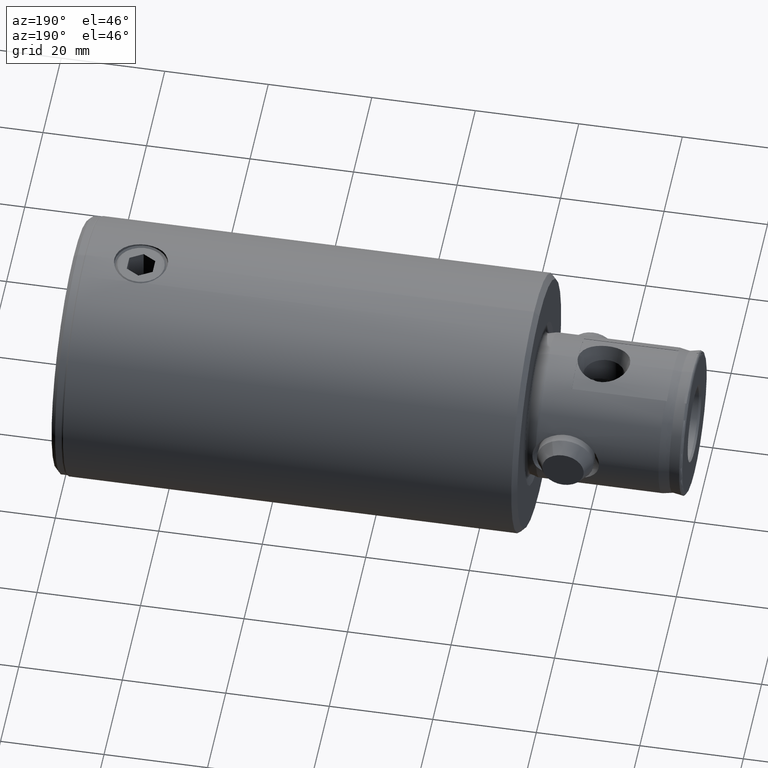
[diagram: clean part render]
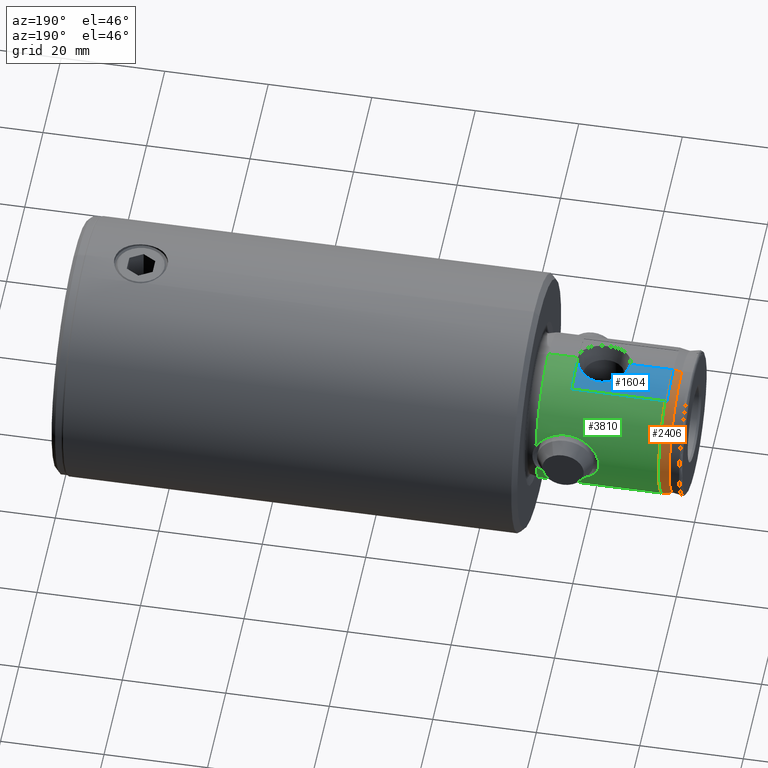
[diagram: same view with three faces highlighted in distinct colors, each labeled with its STEP entity id]
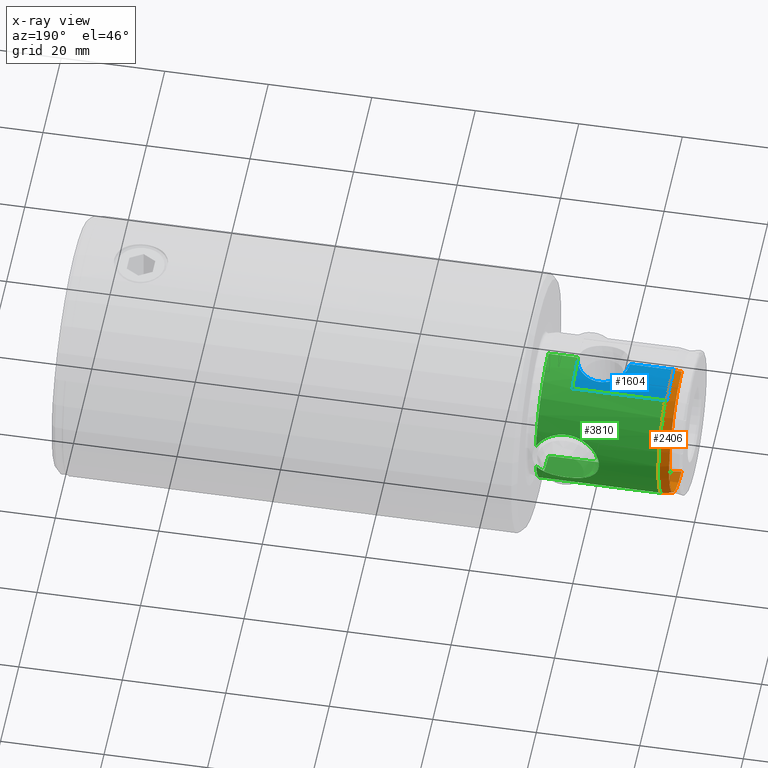
[diagram: x-ray of the same camera — body ghosted, the three highlighted faces saturated]
A machine part, auxiliary view with three faces highlighted in distinct colors.
The next image is the same camera in x-ray (body ghosted, the three faces saturated) — at least one of them is partly hidden behind the body in this view.
Their STEP definitions:

[orange] entity #2406 — the highlighted conical surface has half-angle 10 deg.
#61 = DIRECTION ( 'NONE',  ( 0.0000000000000000000, 0.0000000000000000000, 1.000000000000000000 ) ) ;
#93 = CARTESIAN_POINT ( 'NONE',  ( 12.19529657203608000, 6.750000000000001800, 115.8475680402707700 ) ) ;
#98 = CARTESIAN_POINT ( 'NONE',  ( 13.93000000000000100, 1.700115912069132900E-015, 115.8969897273732400 ) ) ;
#109 = VERTEX_POINT ( 'NONE', #1842 ) ;
#147 = EDGE_CURVE ( 'NONE', #2723, #3440, #887, .T. ) ;
#195 = CONICAL_SURFACE ( 'NONE', #4911, 13.64734603858307500, 0.1745329251994312000 ) ;
#249 = VECTOR ( 'NONE', #3636, 999.9999999999998900 ) ;
#286 = AXIS2_PLACEMENT_3D ( 'NONE', #1549, #3803, #3095 ) ;
#316 = VERTEX_POINT ( 'NONE', #4244 ) ;
#504 = LINE ( 'NONE', #4382, #249 ) ;
#623 = CARTESIAN_POINT ( 'NONE',  ( 13.93000000000000100, 1.700115912069132900E-015, 115.8969897273732400 ) ) ;
#667 = ORIENTED_EDGE ( 'NONE', *, *, #4505, .F. ) ;
#790 = ORIENTED_EDGE ( 'NONE', *, *, #2679, .T. ) ;
#887 = LINE ( 'NONE', #4113, #4332 ) ;
#956 = DIRECTION ( 'NONE',  ( -1.000000000000000000, 0.0000000000000000000, 0.0000000000000000000 ) ) ;
#994 = VERTEX_POINT ( 'NONE', #3510 ) ;
#1061 = ORIENTED_EDGE ( 'NONE', *, *, #2171, .F. ) ;
#1416 = CARTESIAN_POINT ( 'NONE',  ( 13.78296488589999800, 2.045017888756615500, 115.8927994919656800 ) ) ;
#1549 = CARTESIAN_POINT ( 'NONE',  ( 0.0000000000000000000, 0.0000000000000000000, 117.5000000000000000 ) ) ;
#1660 = CARTESIAN_POINT ( 'NONE',  ( 13.64734603858307500, 0.0000000000000000000, 117.5000000000000000 ) ) ;
#1693 = CIRCLE ( 'NONE', #286, 13.64734603858307500 ) ;
#1819 = CARTESIAN_POINT ( 'NONE',  ( 13.56134266502923700, 3.205057411833259100, 115.8864840686328400 ) ) ;
#1842 = CARTESIAN_POINT ( 'NONE',  ( 12.26529657203608000, 6.750000000000001800, 115.4999999999999900 ) ) ;
#1861 = EDGE_CURVE ( 'NONE', #109, #4470, #2106, .T. ) ;
#1985 = CARTESIAN_POINT ( 'NONE',  ( 12.24197818253157700, 6.750000000000001800, 115.6158590063373900 ) ) ;
#2106 = B_SPLINE_CURVE_WITH_KNOTS ( 'NONE', 3,
 ( #4247, #1985, #4635, #93 ),
 .UNSPECIFIED., .F., .F.,
 ( 4, 4 ),
 ( 0.004740533502020404300, 0.005095079999007444200 ),
 .UNSPECIFIED. ) ;
#2171 = EDGE_CURVE ( 'NONE', #2723, #994, #1693, .T. ) ;
#2177 = B_SPLINE_CURVE_WITH_KNOTS ( 'NONE', 3,
 ( #3344, #4042, #2591, #1819, #2222, #2566, #1416, #2894, #4077, #623 ),
 .UNSPECIFIED., .F., .F.,
 ( 4, 2, 2, 2, 4 ),
 ( 2.250691753468842500E-007, 0.003505266093153998300, 0.004381526349148660700, 0.005257786605143323000, 0.007010307117132646800 ),
 .UNSPECIFIED. ) ;
#2222 = CARTESIAN_POINT ( 'NONE',  ( 13.62566706623490200, 2.918193365381274600, 115.8883170326840900 ) ) ;
#2356 = CARTESIAN_POINT ( 'NONE',  ( 0.0000000000000000000, 0.0000000000000000000, 115.4999999999999900 ) ) ;
#2367 = AXIS2_PLACEMENT_3D ( 'NONE', #2356, #61, #2748 ) ;
#2374 = EDGE_CURVE ( 'NONE', #994, #316, #504, .T. ) ;
#2406 = ADVANCED_FACE ( 'NONE', ( #4189 ), #195, .T. ) ;
#2512 = EDGE_LOOP ( 'NONE', ( #1061, #3761, #667, #3270, #790, #3446 ) ) ;
#2566 = CARTESIAN_POINT ( 'NONE',  ( 13.73650709996756300, 2.338270858017040200, 115.8914755685200200 ) ) ;
#2591 = CARTESIAN_POINT ( 'NONE',  ( 13.19615552602072800, 4.624224409879830400, 115.8760782934547000 ) ) ;
#2679 = EDGE_CURVE ( 'NONE', #109, #316, #3260, .T. ) ;
#2723 = VERTEX_POINT ( 'NONE', #1660 ) ;
#2748 = DIRECTION ( 'NONE',  ( 1.000000000000000000, 0.0000000000000000000, 0.0000000000000000000 ) ) ;
#2887 = DIRECTION ( 'NONE',  ( 0.0000000000000000000, 0.0000000000000000000, -1.000000000000000000 ) ) ;
#2894 = CARTESIAN_POINT ( 'NONE',  ( 13.89358345885706400, 1.168449472071400900, 115.8959518747411300 ) ) ;
#3095 = DIRECTION ( 'NONE',  ( 1.000000000000000000, 0.0000000000000000000, 0.0000000000000000000 ) ) ;
#3248 = CARTESIAN_POINT ( 'NONE',  ( 0.0000000000000000000, 0.0000000000000000000, 117.5000000000000000 ) ) ;
#3260 = CIRCLE ( 'NONE', #2367, 14.00000000000000200 ) ;
#3270 = ORIENTED_EDGE ( 'NONE', *, *, #1861, .F. ) ;
#3329 = CARTESIAN_POINT ( 'NONE',  ( 12.19529657203608000, 6.750000000000001800, 115.8475680402707700 ) ) ;
#3344 = CARTESIAN_POINT ( 'NONE',  ( 12.19529657203608000, 6.750000000000001800, 115.8475680402707700 ) ) ;
#3440 = VERTEX_POINT ( 'NONE', #98 ) ;
#3446 = ORIENTED_EDGE ( 'NONE', *, *, #2374, .F. ) ;
#3510 = CARTESIAN_POINT ( 'NONE',  ( -13.64734603858307500, 1.692911691553501200E-015, 117.5000000000000000 ) ) ;
#3636 = DIRECTION ( 'NONE',  ( -0.1736481776669286100, 0.0000000000000000000, -0.9848077530122084600 ) ) ;
#3684 = DIRECTION ( 'NONE',  ( 0.1736481776669286100, 2.126576849575750700E-017, -0.9848077530122084600 ) ) ;
#3761 = ORIENTED_EDGE ( 'NONE', *, *, #147, .T. ) ;
#3803 = DIRECTION ( 'NONE',  ( 0.0000000000000000000, 0.0000000000000000000, 1.000000000000000000 ) ) ;
#4042 = CARTESIAN_POINT ( 'NONE',  ( 12.76666059738928800, 5.711785300511204300, 115.8638411083977100 ) ) ;
#4077 = CARTESIAN_POINT ( 'NONE',  ( 13.93000000000000300, 0.5841741779149363100, 115.8969897273732200 ) ) ;
#4113 = CARTESIAN_POINT ( 'NONE',  ( 13.64734603858307500, 1.671317864300707200E-015, 117.5000000000000000 ) ) ;
#4189 = FACE_OUTER_BOUND ( 'NONE', #2512, .T. ) ;
#4244 = CARTESIAN_POINT ( 'NONE',  ( -14.00000000000000400, 0.0000000000000000000, 115.4999999999999900 ) ) ;
#4247 = CARTESIAN_POINT ( 'NONE',  ( 12.26529657203608000, 6.750000000000001800, 115.4999999999999900 ) ) ;
#4332 = VECTOR ( 'NONE', #3684, 999.9999999999998900 ) ;
#4382 = CARTESIAN_POINT ( 'NONE',  ( -13.64734603858307500, 0.0000000000000000000, 117.5000000000000000 ) ) ;
#4470 = VERTEX_POINT ( 'NONE', #3329 ) ;
#4505 = EDGE_CURVE ( 'NONE', #4470, #3440, #2177, .T. ) ;
#4635 = CARTESIAN_POINT ( 'NONE',  ( 12.21864492891368100, 6.750000000000001800, 115.7317150629940400 ) ) ;
#4911 = AXIS2_PLACEMENT_3D ( 'NONE', #3248, #2887, #956 ) ;

[blue] entity #1604 — the highlighted cylindrical surface (partial cylindrical patch) has radius 14 mm, axis along (-1, 0, 0).
#98 = CARTESIAN_POINT ( 'NONE',  ( 13.93000000000000100, 1.700115912069132900E-015, 115.8969897273732400 ) ) ;
#121 = CARTESIAN_POINT ( 'NONE',  ( 13.92243661871349400, 0.4601276684635998100, 97.50000000000000000 ) ) ;
#221 = CARTESIAN_POINT ( 'NONE',  ( 13.62970044885653700, 2.895681691042795200, 106.5174813728388700 ) ) ;
#251 = VERTEX_POINT ( 'NONE', #2665 ) ;
#264 = EDGE_CURVE ( 'NONE', #1724, #3440, #4089, .T. ) ;
#273 = CARTESIAN_POINT ( 'NONE',  ( 13.08968071146244200, 4.777344164573419100, 103.0436828965610800 ) ) ;
#291 = CARTESIAN_POINT ( 'NONE',  ( 13.24734774208118700, 4.321187803944996900, 100.2969962559374300 ) ) ;
#364 = CIRCLE ( 'NONE', #1035, 14.00000000000000200 ) ;
#514 = CYLINDRICAL_SURFACE ( 'NONE', #878, 14.00000000000000200 ) ;
#623 = CARTESIAN_POINT ( 'NONE',  ( 13.93000000000000100, 1.700115912069132900E-015, 115.8969897273732400 ) ) ;
#643 = CARTESIAN_POINT ( 'NONE',  ( 13.79374192717304100, 1.967940313107625400, 97.90755511833715700 ) ) ;
#673 = CARTESIAN_POINT ( 'NONE',  ( 13.31575603049278400, 4.105288464221573900, 105.1167967268634600 ) ) ;
#699 = DIRECTION ( 'NONE',  ( 0.0000000000000000000, 0.0000000000000000000, -1.000000000000000000 ) ) ;
#708 = CARTESIAN_POINT ( 'NONE',  ( 13.93000000000000300, 0.1575804184599038400, 107.5231537135516900 ) ) ;
#728 = CARTESIAN_POINT ( 'NONE',  ( 13.84813734575962000, 1.539623908669120100, 107.2687263402663700 ) ) ;
#734 = DIRECTION ( 'NONE',  ( 0.0000000000000000000, 0.0000000000000000000, 1.000000000000000000 ) ) ;
#878 = AXIS2_PLACEMENT_3D ( 'NONE', #3857, #1954, #3133 ) ;
#925 = LINE ( 'NONE', #4500, #4839 ) ;
#947 = VECTOR ( 'NONE', #1602, 1000.000000000000000 ) ;
#1000 = CARTESIAN_POINT ( 'NONE',  ( 13.72722142701267800, 2.388188798697188800, 106.8681434979219600 ) ) ;
#1035 = AXIS2_PLACEMENT_3D ( 'NONE', #4482, #699, #4875 ) ;
#1063 = CARTESIAN_POINT ( 'NONE',  ( 13.26826299753350800, 4.255272801819428400, 104.8391815396107600 ) ) ;
#1075 = CARTESIAN_POINT ( 'NONE',  ( 13.90885123101486400, 0.7842719432332087000, 107.4582613081225600 ) ) ;
#1283 = ORIENTED_EDGE ( 'NONE', *, *, #4505, .T. ) ;
#1338 = ORIENTED_EDGE ( 'NONE', *, *, #264, .F. ) ;
#1416 = CARTESIAN_POINT ( 'NONE',  ( 13.78296488589999800, 2.045017888756615500, 115.8927994919656800 ) ) ;
#1565 = B_SPLINE_CURVE_WITH_KNOTS ( 'NONE', 3,
 ( #3710, #1777, #4813, #2576, #643, #3340, #4088, #3323, #3354, #1791, #4441, #291, #1812, #2218, #2202, #4829, #2585, #273, #2952, #4850, #2969, #1063, #673, #2152, #4786, #2545, #221, #1000, #3372, #728, #4476, #1075, #2651, #4494, #708, #2254 ),
 .UNSPECIFIED., .F., .F.,
 ( 4, 2, 2, 2, 2, 2, 2, 2, 2, 2, 2, 2, 2, 2, 2, 2, 2, 4 ),
 ( 1.968493120820871400E-006, 0.0009402772857621217500, 0.001878586078403422700, 0.002816894871044723700, 0.003755203663686024500, 0.004693512456327325300, 0.005631821248968626500, 0.006570130041609927700, 0.007508438834251228100, 0.008446747626892530200, 0.009385056419533830500, 0.01032336521217513300, 0.01126167400481643300, 0.01219998279745773300, 0.01313829159009903500, 0.01407660038274033600, 0.01454575477906099000, 0.01501490917538164700 ),
 .UNSPECIFIED. ) ;
#1602 = DIRECTION ( 'NONE',  ( 0.0000000000000000000, 0.0000000000000000000, 1.000000000000000000 ) ) ;
#1604 = ADVANCED_FACE ( 'NONE', ( #3848 ), #514, .T. ) ;
#1724 = VERTEX_POINT ( 'NONE', #2583 ) ;
#1777 = CARTESIAN_POINT ( 'NONE',  ( 13.91205545619020100, 0.7758177879488895600, 97.53184492937842300 ) ) ;
#1791 = CARTESIAN_POINT ( 'NONE',  ( 13.39157054133116100, 3.850540727424545100, 99.48804266128078700 ) ) ;
#1812 = CARTESIAN_POINT ( 'NONE',  ( 13.20658976098553300, 4.443254278193316000, 100.5826254966198000 ) ) ;
#1819 = CARTESIAN_POINT ( 'NONE',  ( 13.56134266502923700, 3.205057411833259100, 115.8864840686328400 ) ) ;
#1954 = DIRECTION ( 'NONE',  ( 0.0000000000000000000, 0.0000000000000000000, 1.000000000000000000 ) ) ;
#2136 = EDGE_CURVE ( 'NONE', #251, #4470, #925, .T. ) ;
#2152 = CARTESIAN_POINT ( 'NONE',  ( 13.41606595926867000, 3.762696217421689600, 105.6312992343893000 ) ) ;
#2177 = B_SPLINE_CURVE_WITH_KNOTS ( 'NONE', 3,
 ( #3344, #4042, #2591, #1819, #2222, #2566, #1416, #2894, #4077, #623 ),
 .UNSPECIFIED., .F., .F.,
 ( 4, 2, 2, 2, 4 ),
 ( 2.250691753468842500E-007, 0.003505266093153998300, 0.004381526349148660700, 0.005257786605143323000, 0.007010307117132646800 ),
 .UNSPECIFIED. ) ;
#2202 = CARTESIAN_POINT ( 'NONE',  ( 13.11530113195603600, 4.706362817278694900, 101.4822043739909200 ) ) ;
#2218 = CARTESIAN_POINT ( 'NONE',  ( 13.14063342962990100, 4.635677798352042500, 101.1737493629957600 ) ) ;
#2222 = CARTESIAN_POINT ( 'NONE',  ( 13.62566706623490200, 2.918193365381274600, 115.8883170326840900 ) ) ;
#2254 = CARTESIAN_POINT ( 'NONE',  ( 13.93000000000000900, 1.731427006139418400E-015, 107.5231537135516900 ) ) ;
#2483 = EDGE_CURVE ( 'NONE', #3301, #1724, #1565, .T. ) ;
#2545 = CARTESIAN_POINT ( 'NONE',  ( 13.57641583679815200, 3.134549875054074800, 106.3157867162607000 ) ) ;
#2566 = CARTESIAN_POINT ( 'NONE',  ( 13.73650709996756300, 2.338270858017040200, 115.8914755685200200 ) ) ;
#2576 = CARTESIAN_POINT ( 'NONE',  ( 13.83245781770320400, 1.676580246922929200, 97.78233979141205600 ) ) ;
#2583 = CARTESIAN_POINT ( 'NONE',  ( 13.93000000000000900, 1.731427006139418400E-015, 107.5231537135516900 ) ) ;
#2585 = CARTESIAN_POINT ( 'NONE',  ( 13.07967536905463700, 4.804815436923485400, 102.4185256405416900 ) ) ;
#2591 = CARTESIAN_POINT ( 'NONE',  ( 13.19615552602072800, 4.624224409879830400, 115.8760782934547000 ) ) ;
#2651 = CARTESIAN_POINT ( 'NONE',  ( 13.91670197381868400, 0.6298221015118298200, 107.4824045219487200 ) ) ;
#2665 = CARTESIAN_POINT ( 'NONE',  ( 12.19529657203608000, 6.750000000000001800, 97.50000000000000000 ) ) ;
#2879 = ORIENTED_EDGE ( 'NONE', *, *, #4587, .F. ) ;
#2894 = CARTESIAN_POINT ( 'NONE',  ( 13.89358345885706400, 1.168449472071400900, 115.8959518747411300 ) ) ;
#2952 = CARTESIAN_POINT ( 'NONE',  ( 13.10520337713564100, 4.734917589269096900, 103.3597717687372600 ) ) ;
#2969 = CARTESIAN_POINT ( 'NONE',  ( 13.18767256074532100, 4.500080519428094800, 104.2662318425792600 ) ) ;
#3133 = DIRECTION ( 'NONE',  ( 1.000000000000000000, 0.0000000000000000000, 0.0000000000000000000 ) ) ;
#3301 = VERTEX_POINT ( 'NONE', #121 ) ;
#3323 = CARTESIAN_POINT ( 'NONE',  ( 13.55142747085605800, 3.242834235621267600, 98.78466762768695700 ) ) ;
#3329 = CARTESIAN_POINT ( 'NONE',  ( 12.19529657203608000, 6.750000000000001800, 115.8475680402707700 ) ) ;
#3340 = CARTESIAN_POINT ( 'NONE',  ( 13.70543717439264400, 2.512659935918698300, 98.20879280902296700 ) ) ;
#3344 = CARTESIAN_POINT ( 'NONE',  ( 12.19529657203608000, 6.750000000000001800, 115.8475680402707700 ) ) ;
#3354 = CARTESIAN_POINT ( 'NONE',  ( 13.49674220648362200, 3.461798843896911400, 99.00854270068006700 ) ) ;
#3372 = CARTESIAN_POINT ( 'NONE',  ( 13.77197944323566700, 2.117686012754333100, 107.0191703707996900 ) ) ;
#3440 = VERTEX_POINT ( 'NONE', #98 ) ;
#3710 = CARTESIAN_POINT ( 'NONE',  ( 13.92243661871349400, 0.4601276684635998100, 97.50000000000000000 ) ) ;
#3848 = FACE_OUTER_BOUND ( 'NONE', #4025, .T. ) ;
#3857 = CARTESIAN_POINT ( 'NONE',  ( -0.07000000000000000700, 0.0000000000000000000, 97.50000000000000000 ) ) ;
#4025 = EDGE_LOOP ( 'NONE', ( #1338, #4807, #2879, #4078, #1283 ) ) ;
#4042 = CARTESIAN_POINT ( 'NONE',  ( 12.76666059738928800, 5.711785300511204300, 115.8638411083977100 ) ) ;
#4077 = CARTESIAN_POINT ( 'NONE',  ( 13.93000000000000300, 0.5841741779149363100, 115.8969897273732200 ) ) ;
#4078 = ORIENTED_EDGE ( 'NONE', *, *, #2136, .T. ) ;
#4088 = CARTESIAN_POINT ( 'NONE',  ( 13.65593288464937800, 2.767313981031127100, 98.38441217899574600 ) ) ;
#4089 = LINE ( 'NONE', #4228, #947 ) ;
#4228 = CARTESIAN_POINT ( 'NONE',  ( 13.93000000000000100, 0.0000000000000000000, 97.50000000000000000 ) ) ;
#4441 = CARTESIAN_POINT ( 'NONE',  ( 13.34047514595635200, 4.022880967685343200, 99.74600257480189200 ) ) ;
#4470 = VERTEX_POINT ( 'NONE', #3329 ) ;
#4476 = CARTESIAN_POINT ( 'NONE',  ( 13.87816752293798400, 1.241804989204090100, 107.3628910618224500 ) ) ;
#4482 = CARTESIAN_POINT ( 'NONE',  ( -0.07000000000000000700, 0.0000000000000000000, 97.50000000000000000 ) ) ;
#4494 = CARTESIAN_POINT ( 'NONE',  ( 13.92728837994936300, 0.3169006035190821700, 107.5148868466984700 ) ) ;
#4500 = CARTESIAN_POINT ( 'NONE',  ( 12.19529657203608000, 6.750000000000001800, 97.50000000000000000 ) ) ;
#4505 = EDGE_CURVE ( 'NONE', #4470, #3440, #2177, .T. ) ;
#4587 = EDGE_CURVE ( 'NONE', #251, #3301, #364, .T. ) ;
#4786 = CARTESIAN_POINT ( 'NONE',  ( 13.46927356704510700, 3.569053009795567300, 105.8712519311815900 ) ) ;
#4807 = ORIENTED_EDGE ( 'NONE', *, *, #2483, .F. ) ;
#4813 = CARTESIAN_POINT ( 'NONE',  ( 13.89132448406627800, 1.081976593092839100, 97.59546604848522100 ) ) ;
#4829 = CARTESIAN_POINT ( 'NONE',  ( 13.08483540269018500, 4.790858215012586500, 102.1062279089286400 ) ) ;
#4839 = VECTOR ( 'NONE', #734, 1000.000000000000000 ) ;
#4850 = CARTESIAN_POINT ( 'NONE',  ( 13.15430995447273700, 4.595982466686480800, 103.9704232062308500 ) ) ;
#4875 = DIRECTION ( 'NONE',  ( 1.000000000000000000, 0.0000000000000000000, 0.0000000000000000000 ) ) ;

[green] entity #3810 — the highlighted cylindrical surface (partial cylindrical patch) has radius 14 mm, axis along (1, 0, -0).
#61 = DIRECTION ( 'NONE',  ( 0.0000000000000000000, 0.0000000000000000000, 1.000000000000000000 ) ) ;
#109 = VERTEX_POINT ( 'NONE', #1842 ) ;
#116 = CARTESIAN_POINT ( 'NONE',  ( 13.98628557468939500, 0.6195287105819580200, 97.50000000000000000 ) ) ;
#127 = CIRCLE ( 'NONE', #4735, 14.00000000000000000 ) ;
#255 = CARTESIAN_POINT ( 'NONE',  ( 1.695917762201209400, 13.90056626244592100, 103.7354621131498800 ) ) ;
#316 = VERTEX_POINT ( 'NONE', #4244 ) ;
#342 = DIRECTION ( 'NONE',  ( 0.0000000000000000000, 0.0000000000000000000, -1.000000000000000000 ) ) ;
#367 = CARTESIAN_POINT ( 'NONE',  ( -4.784959650984737000, 13.15803071858877300, 101.1754924594164000 ) ) ;
#385 = CARTESIAN_POINT ( 'NONE',  ( -5.529544470009817300, 12.86200036760733500, 95.55000323657294800 ) ) ;
#397 = EDGE_LOOP ( 'NONE', ( #608, #1272, #4187, #2383, #3408, #2848, #996, #4082, #2256, #3008 ) ) ;
#415 = CARTESIAN_POINT ( 'NONE',  ( 12.26529657203607800, 6.750000000000001800, 97.50000000000000000 ) ) ;
#535 = CARTESIAN_POINT ( 'NONE',  ( 3.350307657867889000, 13.59571365889029900, 92.18131306850349900 ) ) ;
#608 = ORIENTED_EDGE ( 'NONE', *, *, #1704, .F. ) ;
#615 = CARTESIAN_POINT ( 'NONE',  ( 2.327663637436867500, 13.80883273357142100, 103.4714641554360000 ) ) ;
#631 = CARTESIAN_POINT ( 'NONE',  ( 5.707787153934146000, 12.78385477015623600, 98.62920639909292200 ) ) ;
#653 = CARTESIAN_POINT ( 'NONE',  ( 5.102777615506080400, 13.03808321615812800, 100.5883371413597200 ) ) ;
#659 = CARTESIAN_POINT ( 'NONE',  ( -0.3482674481706022300, 13.99672645420883700, 104.0014478521524200 ) ) ;
#692 = VECTOR ( 'NONE', #2515, 1000.000000000000000 ) ;
#709 = DIRECTION ( 'NONE',  ( 1.000000000000000000, 0.0000000000000000000, 0.0000000000000000000 ) ) ;
#713 = CARTESIAN_POINT ( 'NONE',  ( -1.366867380146573400, 13.93719423576479100, 103.8374495799833300 ) ) ;
#715 = CARTESIAN_POINT ( 'NONE',  ( -2.786003228854984300, 13.71999220148501100, 91.79524911219959900 ) ) ;
#720 = CYLINDRICAL_SURFACE ( 'NONE', #3905, 14.00000000000000000 ) ;
#756 = CARTESIAN_POINT ( 'NONE',  ( -5.428304949919924700, 12.90547905735602000, 95.21839155667919400 ) ) ;
#771 = CARTESIAN_POINT ( 'NONE',  ( -3.962828783582357700, 13.42985955858207300, 102.2556321204845500 ) ) ;
#786 = CARTESIAN_POINT ( 'NONE',  ( -5.709098745146150100, 12.78326268388171600, 98.62008758027583600 ) ) ;
#828 = EDGE_CURVE ( 'NONE', #3607, #3695, #3155, .T. ) ;
#924 = CARTESIAN_POINT ( 'NONE',  ( 4.513398303489596600, 13.25440434351371300, 93.41236355771370400 ) ) ;
#969 = LINE ( 'NONE', #4105, #4519 ) ;
#996 = ORIENTED_EDGE ( 'NONE', *, *, #1060, .F. ) ;
#1060 = EDGE_CURVE ( 'NONE', #316, #4262, #3669, .T. ) ;
#1106 = CARTESIAN_POINT ( 'NONE',  ( -2.632775246658247200, 13.75329062894703300, 103.3080576556167400 ) ) ;
#1182 = CARTESIAN_POINT ( 'NONE',  ( -5.106925702021530200, 13.03644587788057600, 100.5795376092557100 ) ) ;
#1251 = CARTESIAN_POINT ( 'NONE',  ( 13.99883399844813400, 0.2081859670385358700, 97.46163671662451100 ) ) ;
#1272 = ORIENTED_EDGE ( 'NONE', *, *, #828, .T. ) ;
#1316 = CARTESIAN_POINT ( 'NONE',  ( -5.790990920248874300, 12.74619130042985500, 97.24242749490714700 ) ) ;
#1324 = CARTESIAN_POINT ( 'NONE',  ( 5.707505378783706900, 12.78390275703759800, 96.21833517379765500 ) ) ;
#1366 = CARTESIAN_POINT ( 'NONE',  ( 13.99423090316841100, 0.4149652296097595100, 97.47567767932079600 ) ) ;
#1376 = CARTESIAN_POINT ( 'NONE',  ( 5.474169123394660600, 12.88601298455867700, 99.63842272933806000 ) ) ;
#1410 = B_SPLINE_CURVE_WITH_KNOTS ( 'NONE', 3,
 ( #2628, #3769, #659, #2282, #3011, #713, #2221, #3393, #1106, #1535, #1898, #771, #4540, #3428, #367, #1182, #3047, #1928, #2297, #786, #4600, #4215, #1316, #1949, #2690, #385, #756, #3061, #3855, #3448, #1520, #4177, #2321, #3478, #4225, #2335 ),
 .UNSPECIFIED., .F., .F.,
 ( 4, 2, 2, 2, 2, 2, 2, 2, 2, 2, 2, 2, 2, 2, 2, 2, 2, 4 ),
 ( 0.02368636115555508600, 0.02419977539775300700, 0.02471318963995092600, 0.02574001812434675900, 0.02676684660874259100, 0.02779367509313842100, 0.02882050357753425400, 0.02984733206193008700, 0.03087416054632592000, 0.03190098903072174900, 0.03292781751511758600, 0.03395464599951342200, 0.03498147448390925100, 0.03600830296830508100, 0.03703513145270091700, 0.03806195993709674700, 0.03908878842149258300, 0.04011561690588841300 ),
 .UNSPECIFIED. ) ;
#1423 = CARTESIAN_POINT ( 'NONE',  ( 4.778909524931337100, 13.16024228870026200, 101.1855337526098000 ) ) ;
#1520 = CARTESIAN_POINT ( 'NONE',  ( -4.509274815288497600, 13.25581737577915000, 93.40657036200329300 ) ) ;
#1535 = CARTESIAN_POINT ( 'NONE',  ( -3.201421459528325000, 13.63214617227127200, 102.9341559614110700 ) ) ;
#1544 = CARTESIAN_POINT ( 'NONE',  ( 14.00000000000000000, 1.714505518806294600E-015, 91.79524911219959900 ) ) ;
#1557 = DIRECTION ( 'NONE',  ( 0.0000000000000000000, 0.0000000000000000000, 1.000000000000000000 ) ) ;
#1558 = CIRCLE ( 'NONE', #2866, 14.00000000000000000 ) ;
#1601 = CARTESIAN_POINT ( 'NONE',  ( -14.00000000000000000, 0.0000000000000000000, 91.79524911219959900 ) ) ;
#1605 = DIRECTION ( 'NONE',  ( 0.0000000000000000000, 0.0000000000000000000, -1.000000000000000000 ) ) ;
#1662 = CARTESIAN_POINT ( 'NONE',  ( 0.0000000000000000000, 0.0000000000000000000, 97.50000000000000000 ) ) ;
#1666 = CARTESIAN_POINT ( 'NONE',  ( 3.077177347050608500, 13.66086592637210600, 91.97543838154103900 ) ) ;
#1681 = CARTESIAN_POINT ( 'NONE',  ( 5.038412456858351300, 13.06317113933390100, 94.28091334581283400 ) ) ;
#1704 = EDGE_CURVE ( 'NONE', #3607, #2742, #4279, .T. ) ;
#1749 = CARTESIAN_POINT ( 'NONE',  ( 3.957525237287497600, 13.43140993838210300, 102.2611219523042800 ) ) ;
#1765 = CARTESIAN_POINT ( 'NONE',  ( 2.627444490673952200, 13.75432363467087200, 103.3111572752397200 ) ) ;
#1834 = DIRECTION ( 'NONE',  ( 0.0000000000000000000, 0.0000000000000000000, 1.000000000000000000 ) ) ;
#1842 = CARTESIAN_POINT ( 'NONE',  ( 12.26529657203608000, 6.750000000000001800, 115.4999999999999900 ) ) ;
#1898 = CARTESIAN_POINT ( 'NONE',  ( -3.470696273051712600, 13.56537530300773400, 102.7199302023066000 ) ) ;
#1928 = CARTESIAN_POINT ( 'NONE',  ( -5.478383751243890200, 12.88422296619514500, 99.62505926837545200 ) ) ;
#1949 = CARTESIAN_POINT ( 'NONE',  ( -5.734266548439030900, 12.77181097797065600, 96.55580350548943600 ) ) ;
#1989 = DIRECTION ( 'NONE',  ( -1.000000000000000000, 0.0000000000000000000, 0.0000000000000000000 ) ) ;
#2089 = CARTESIAN_POINT ( 'NONE',  ( 5.791631886085142800, 12.74589922028420500, 97.25712778830809700 ) ) ;
#2132 = CARTESIAN_POINT ( 'NONE',  ( -14.00000000000000000, 0.0000000000000000000, 120.0000000000000000 ) ) ;
#2143 = EDGE_CURVE ( 'NONE', #3382, #4127, #1410, .T. ) ;
#2147 = VECTOR ( 'NONE', #342, 1000.000000000000000 ) ;
#2162 = CARTESIAN_POINT ( 'NONE',  ( 3.197391008803412800, 13.63310580666275800, 102.9372050040032300 ) ) ;
#2221 = CARTESIAN_POINT ( 'NONE',  ( -1.698272018877071700, 13.90031169640689500, 103.7347580249020200 ) ) ;
#2256 = ORIENTED_EDGE ( 'NONE', *, *, #4754, .T. ) ;
#2282 = CARTESIAN_POINT ( 'NONE',  ( -0.6923645641661465600, 13.98392909591905900, 103.9664227999070600 ) ) ;
#2297 = CARTESIAN_POINT ( 'NONE',  ( -5.571954321282000900, 12.84363415737535900, 99.29103811693869400 ) ) ;
#2321 = CARTESIAN_POINT ( 'NONE',  ( -3.846973400754379200, 13.46361595076397000, 92.62535861262426800 ) ) ;
#2335 = CARTESIAN_POINT ( 'NONE',  ( -2.786003228854984300, 13.71999220148501100, 91.79524911219959900 ) ) ;
#2356 = CARTESIAN_POINT ( 'NONE',  ( 0.0000000000000000000, 0.0000000000000000000, 115.4999999999999900 ) ) ;
#2367 = AXIS2_PLACEMENT_3D ( 'NONE', #2356, #61, #2748 ) ;
#2383 = ORIENTED_EDGE ( 'NONE', *, *, #2431, .T. ) ;
#2408 = CARTESIAN_POINT ( 'NONE',  ( 0.0000000000000000000, 0.0000000000000000000, 120.0000000000000000 ) ) ;
#2426 = DIRECTION ( 'NONE',  ( 1.000000000000000000, 0.0000000000000000000, 0.0000000000000000000 ) ) ;
#2431 = EDGE_CURVE ( 'NONE', #2907, #3382, #3694, .T. ) ;
#2477 = DIRECTION ( 'NONE',  ( 0.0000000000000000000, 0.0000000000000000000, -1.000000000000000000 ) ) ;
#2491 = DIRECTION ( 'NONE',  ( 0.0000000000000000000, 0.0000000000000000000, 1.000000000000000000 ) ) ;
#2500 = CARTESIAN_POINT ( 'NONE',  ( 5.752751683695845700, 12.76347832453313900, 98.28904844139167100 ) ) ;
#2511 = CARTESIAN_POINT ( 'NONE',  ( 2.786003228855003800, 13.71999220148501000, 91.79524911219959900 ) ) ;
#2515 = DIRECTION ( 'NONE',  ( 0.0000000000000000000, 0.0000000000000000000, -1.000000000000000000 ) ) ;
#2561 = CARTESIAN_POINT ( 'NONE',  ( 0.3468478819271653700, 14.00000000000000700, 104.0103629710818800 ) ) ;
#2628 = CARTESIAN_POINT ( 'NONE',  ( -3.374461078431114000E-016, 14.00000000000000400, 104.0103629710818600 ) ) ;
#2679 = EDGE_CURVE ( 'NONE', #109, #316, #3260, .T. ) ;
#2690 = CARTESIAN_POINT ( 'NONE',  ( -5.681948535366808000, 12.79540450097574900, 96.21735549959490200 ) ) ;
#2742 = VERTEX_POINT ( 'NONE', #116 ) ;
#2747 = CARTESIAN_POINT ( 'NONE',  ( 0.0000000000000000000, 0.0000000000000000000, 91.79524911219959900 ) ) ;
#2748 = DIRECTION ( 'NONE',  ( 1.000000000000000000, 0.0000000000000000000, 0.0000000000000000000 ) ) ;
#2829 = CARTESIAN_POINT ( 'NONE',  ( 14.00000000000000000, 0.1036761038622536900, 97.45808984297809700 ) ) ;
#2848 = ORIENTED_EDGE ( 'NONE', *, *, #3582, .T. ) ;
#2866 = AXIS2_PLACEMENT_3D ( 'NONE', #4103, #1834, #709 ) ;
#2905 = CARTESIAN_POINT ( 'NONE',  ( 1.361253282158789900, 13.93774706253390900, 103.8389879677060000 ) ) ;
#2907 = VERTEX_POINT ( 'NONE', #2511 ) ;
#3008 = ORIENTED_EDGE ( 'NONE', *, *, #3472, .F. ) ;
#3011 = CARTESIAN_POINT ( 'NONE',  ( -0.8624268755837442000, 13.97442833479627000, 103.9403747912480300 ) ) ;
#3047 = CARTESIAN_POINT ( 'NONE',  ( -5.245496335893636600, 12.98078033704638300, 100.2695647645014400 ) ) ;
#3061 = CARTESIAN_POINT ( 'NONE',  ( -5.180782699721334000, 13.00682032425481800, 94.58057644547514500 ) ) ;
#3103 = AXIS2_PLACEMENT_3D ( 'NONE', #1662, #2491, #2426 ) ;
#3155 = LINE ( 'NONE', #3475, #2147 ) ;
#3219 = CARTESIAN_POINT ( 'NONE',  ( 4.087813059914242200, 13.39178043183550700, 92.88047039070399100 ) ) ;
#3233 = CARTESIAN_POINT ( 'NONE',  ( 2.786003228855003800, 13.71999220148501000, 91.79524911219959900 ) ) ;
#3236 = CARTESIAN_POINT ( 'NONE',  ( 13.98628557468939500, 0.6195287105819580200, 97.50000000000000000 ) ) ;
#3260 = CIRCLE ( 'NONE', #2367, 14.00000000000000200 ) ;
#3382 = VERTEX_POINT ( 'NONE', #4828 ) ;
#3393 = CARTESIAN_POINT ( 'NONE',  ( -2.332819259596707000, 13.80799577815049200, 103.4690266382580300 ) ) ;
#3408 = ORIENTED_EDGE ( 'NONE', *, *, #2143, .T. ) ;
#3428 = CARTESIAN_POINT ( 'NONE',  ( -4.600083376787464900, 13.22445752225305800, 101.4633778323357200 ) ) ;
#3448 = CARTESIAN_POINT ( 'NONE',  ( -4.699804378496888400, 13.18877657528387300, 93.68811390886072800 ) ) ;
#3472 = EDGE_CURVE ( 'NONE', #2742, #3668, #4297, .T. ) ;
#3475 = CARTESIAN_POINT ( 'NONE',  ( 14.00000000000000000, 1.714505518806294600E-015, 120.0000000000000000 ) ) ;
#3478 = CARTESIAN_POINT ( 'NONE',  ( -3.342333470866013300, 13.59768236815768300, 92.17496127354840500 ) ) ;
#3578 = CARTESIAN_POINT ( 'NONE',  ( 14.00000000000000000, 7.144229703649788600E-018, 97.45808984297812600 ) ) ;
#3582 = EDGE_CURVE ( 'NONE', #4127, #4262, #1558, .T. ) ;
#3605 = CARTESIAN_POINT ( 'NONE',  ( 5.556440077026377500, 12.85291829773606800, 95.55193530019268200 ) ) ;
#3607 = VERTEX_POINT ( 'NONE', #3578 ) ;
#3662 = CARTESIAN_POINT ( 'NONE',  ( 5.568646887659896000, 12.84507488571467200, 99.30442534169729600 ) ) ;
#3668 = VERTEX_POINT ( 'NONE', #415 ) ;
#3669 = LINE ( 'NONE', #2132, #692 ) ;
#3694 = B_SPLINE_CURVE_WITH_KNOTS ( 'NONE', 3,
 ( #3233, #1666, #535, #4755, #3219, #924, #3974, #1681, #4341, #3605, #1324, #2089, #3986, #2500, #631, #3662, #1376, #4413, #653, #1423, #4427, #4040, #1749, #4390, #2162, #1765, #615, #255, #2905, #4801, #2561, #4070 ),
 .UNSPECIFIED., .F., .F.,
 ( 4, 2, 2, 2, 2, 2, 2, 2, 2, 2, 2, 2, 2, 2, 2, 4 ),
 ( 0.007234288360271810800, 0.008262542909977015100, 0.009290797459682219300, 0.01031905200938742500, 0.01134730655909263000, 0.01340381565850304000, 0.01443207020820824400, 0.01546032475791344800, 0.01648857930761865300, 0.01751683385732385700, 0.01854508840702906400, 0.01957334295673426900, 0.02060159750643947300, 0.02162985205614467700, 0.02265810660584988100, 0.02368636115555508600 ),
 .UNSPECIFIED. ) ;
#3695 = VERTEX_POINT ( 'NONE', #1544 ) ;
#3769 = CARTESIAN_POINT ( 'NONE',  ( -0.1731834228291455900, 14.00000000000000900, 104.0103629710818600 ) ) ;
#3787 = EDGE_CURVE ( 'NONE', #3695, #2907, #127, .T. ) ;
#3810 = ADVANCED_FACE ( 'NONE', ( #4047 ), #720, .T. ) ;
#3841 = CARTESIAN_POINT ( 'NONE',  ( 14.00000000000000000, 7.144229703649788600E-018, 97.45808984297812600 ) ) ;
#3844 = DIRECTION ( 'NONE',  ( 1.000000000000000000, 0.0000000000000000000, 0.0000000000000000000 ) ) ;
#3855 = CARTESIAN_POINT ( 'NONE',  ( -5.035196304111030600, 13.06440916872867100, 94.27464480817302200 ) ) ;
#3905 = AXIS2_PLACEMENT_3D ( 'NONE', #2408, #1605, #1989 ) ;
#3974 = CARTESIAN_POINT ( 'NONE',  ( 4.702779751459500400, 13.18771788105182300, 93.69268483055496700 ) ) ;
#3986 = CARTESIAN_POINT ( 'NONE',  ( 5.794731809289583400, 12.74447386648425600, 97.60369629607066600 ) ) ;
#4030 = CARTESIAN_POINT ( 'NONE',  ( 13.99080011110824600, 0.5176099544167203100, 97.48615276408141000 ) ) ;
#4040 = CARTESIAN_POINT ( 'NONE',  ( 4.182081398372449900, 13.36251627246620000, 102.0111750013714700 ) ) ;
#4047 = FACE_OUTER_BOUND ( 'NONE', #397, .T. ) ;
#4070 = CARTESIAN_POINT ( 'NONE',  ( -3.374461078431114000E-016, 14.00000000000000400, 104.0103629710818600 ) ) ;
#4082 = ORIENTED_EDGE ( 'NONE', *, *, #2679, .F. ) ;
#4103 = CARTESIAN_POINT ( 'NONE',  ( 0.0000000000000000000, 0.0000000000000000000, 91.79524911219959900 ) ) ;
#4105 = CARTESIAN_POINT ( 'NONE',  ( 12.26529657203607800, 6.750000000000000000, 120.0000000000000000 ) ) ;
#4127 = VERTEX_POINT ( 'NONE', #715 ) ;
#4177 = CARTESIAN_POINT ( 'NONE',  ( -4.082557606161634200, 13.39339303732162100, 92.87455608267312400 ) ) ;
#4187 = ORIENTED_EDGE ( 'NONE', *, *, #3787, .T. ) ;
#4215 = CARTESIAN_POINT ( 'NONE',  ( -5.794928628587015900, 12.74438360734158400, 97.59288079265211000 ) ) ;
#4225 = CARTESIAN_POINT ( 'NONE',  ( -3.073211500937238900, 13.66167123733108100, 91.97298416988955700 ) ) ;
#4244 = CARTESIAN_POINT ( 'NONE',  ( -14.00000000000000400, 0.0000000000000000000, 115.4999999999999900 ) ) ;
#4262 = VERTEX_POINT ( 'NONE', #1601 ) ;
#4279 = B_SPLINE_CURVE_WITH_KNOTS ( 'NONE', 3,
 ( #3841, #2829, #1251, #1366, #4030, #3236 ),
 .UNSPECIFIED., .F., .F.,
 ( 4, 2, 4 ),
 ( 0.005131204250430938500, 0.005437553660983899900, 0.005743903071536861400 ),
 .UNSPECIFIED. ) ;
#4297 = CIRCLE ( 'NONE', #3103, 14.00000000000000000 ) ;
#4341 = CARTESIAN_POINT ( 'NONE',  ( 5.185214253568585900, 13.00505428358740200, 94.59035754227356600 ) ) ;
#4390 = CARTESIAN_POINT ( 'NONE',  ( 3.466711056969518500, 13.56638099804521100, 102.7231944771749700 ) ) ;
#4413 = CARTESIAN_POINT ( 'NONE',  ( 5.241483741328490700, 12.98239987133085500, 100.2789084512686800 ) ) ;
#4427 = CARTESIAN_POINT ( 'NONE',  ( 4.592277874487417800, 13.22715501829589400, 101.4746122295138100 ) ) ;
#4519 = VECTOR ( 'NONE', #2477, 1000.000000000000000 ) ;
#4540 = CARTESIAN_POINT ( 'NONE',  ( -4.188212498094580700, 13.36061076081763800, 102.0041453999776000 ) ) ;
#4600 = CARTESIAN_POINT ( 'NONE',  ( -5.753728931132796400, 12.76303704956385900, 98.28048527354288000 ) ) ;
#4735 = AXIS2_PLACEMENT_3D ( 'NONE', #2747, #1557, #3844 ) ;
#4754 = EDGE_CURVE ( 'NONE', #109, #3668, #969, .T. ) ;
#4755 = CARTESIAN_POINT ( 'NONE',  ( 3.854251505801617100, 13.46152801976544900, 92.63264317713616000 ) ) ;
#4801 = CARTESIAN_POINT ( 'NONE',  ( 0.6883673254549624900, 13.98713530722452200, 103.9754899300642300 ) ) ;
#4828 = CARTESIAN_POINT ( 'NONE',  ( -3.374461078431114000E-016, 14.00000000000000400, 104.0103629710818600 ) ) ;